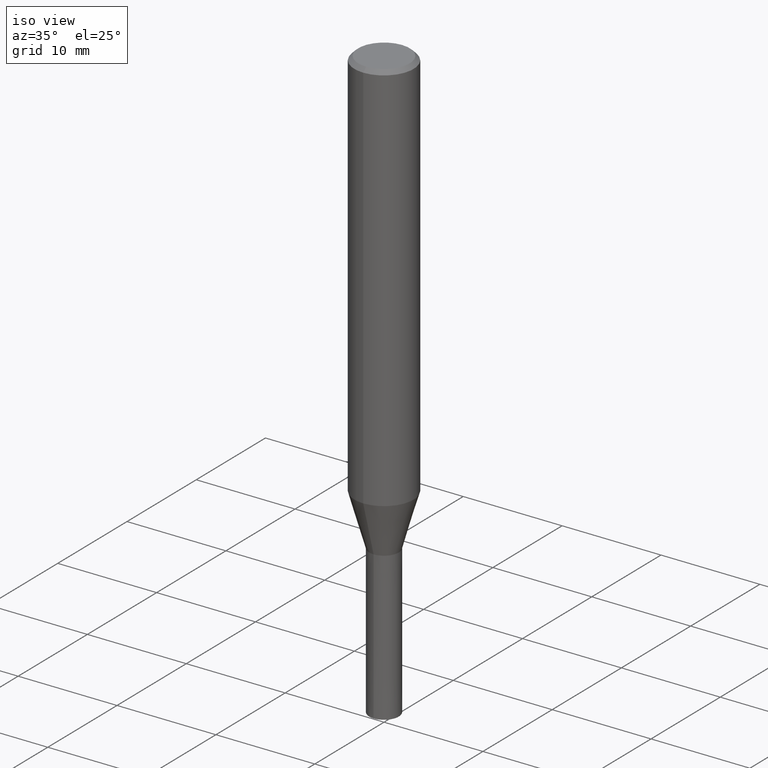
[diagram: clean part render]
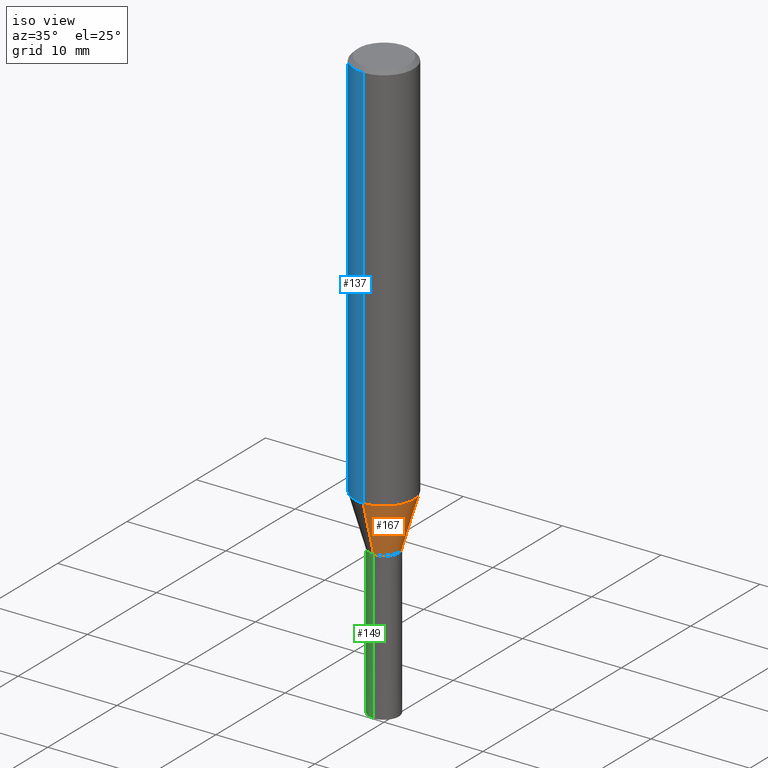
[diagram: same view with three faces highlighted in distinct colors, each labeled with its STEP entity id]
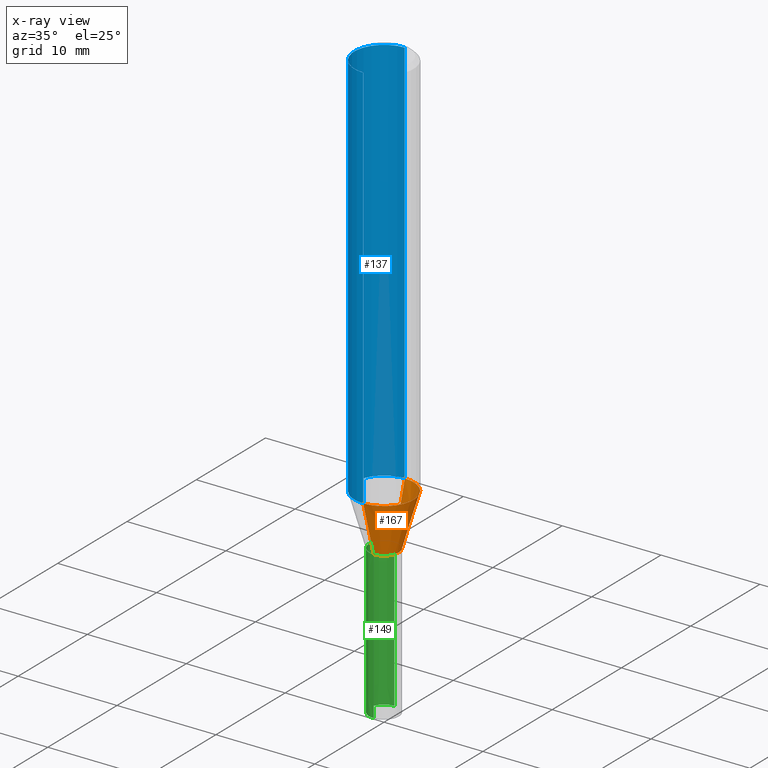
[diagram: x-ray of the same camera — body ghosted, the three highlighted faces saturated]
A machine part, iso view with three faces highlighted in distinct colors.
The next image is the same camera in x-ray (body ghosted, the three faces saturated) — at least one of them is partly hidden behind the body in this view.
Their STEP definitions:

[orange] entity #167 — the highlighted conical surface has half-angle 16 deg.
#121=EDGE_CURVE('',#155,#197,#292,.T.);
#125=VERTEX_POINT('',#296);
#155=VERTEX_POINT('',#332);
#167=ADVANCED_FACE('',(#344),#345,.T.);
#171=EDGE_CURVE('',#231,#197,#349,.T.);
#197=VERTEX_POINT('',#378);
#205=EDGE_CURVE('',#155,#125,#388,.T.);
#229=EDGE_CURVE('',#125,#231,#413,.T.);
#231=VERTEX_POINT('',#415);
#292=CIRCLE('',#483,2.99995);
#296=CARTESIAN_POINT('',(0.0,1.49995,-45.0));
#332=CARTESIAN_POINT('',(0.0,2.99995,-39.769));
#344=FACE_OUTER_BOUND('',#546,.T.);
#345=CONICAL_SURFACE('',#547,2.24995,0.279258842899557);
#349=LINE('',#554,#555);
#378=CARTESIAN_POINT('',(3.67375783114944E-016,-2.99995,-39.769));
#388=LINE('',#604,#605);
#413=CIRCLE('',#637,1.49995);
#415=CARTESIAN_POINT('',(1.83684830041587E-016,-1.49995,-45.0));
#483=AXIS2_PLACEMENT_3D('',#693,#694,#695);
#546=EDGE_LOOP('',(#758,#759,#760,#761));
#547=AXIS2_PLACEMENT_3D('',#762,#763,#764);
#554=CARTESIAN_POINT('',(2.75530306578266E-016,-2.24995,-42.3845));
#555=VECTOR('',#766,1.0);
#604=CARTESIAN_POINT('',(-2.75530306578266E-016,2.24995,-42.3845));
#605=VECTOR('',#821,1.0);
#637=AXIS2_PLACEMENT_3D('',#840,#841,#842);
#693=CARTESIAN_POINT('',(0.0,0.0,-39.769));
#694=DIRECTION('',(0.0,0.0,-1.0));
#695=DIRECTION('',(0.0,1.0,0.0));
#758=ORIENTED_EDGE('',*,*,#205,.F.);
#759=ORIENTED_EDGE('',*,*,#121,.T.);
#760=ORIENTED_EDGE('',*,*,#171,.F.);
#761=ORIENTED_EDGE('',*,*,#229,.F.);
#762=CARTESIAN_POINT('',(0.0,0.0,-42.3845));
#763=DIRECTION('',(-0.0,-0.0,1.0));
#764=DIRECTION('',(0.0,1.0,0.0));
#766=DIRECTION('',(3.37554511665356E-017,-0.275643279664313,0.961259997282682));
#821=DIRECTION('',(3.37554511665356E-017,-0.275643279664313,-0.961259997282682));
#840=CARTESIAN_POINT('',(0.0,0.0,-45.0));
#841=DIRECTION('',(0.0,0.0,-1.0));
#842=DIRECTION('',(0.0,1.0,0.0));

[blue] entity #137 — the highlighted cylindrical surface (edge-blend (fillet) strip) has radius 3 mm, axis along (-0, -0, 1).
#109=EDGE_CURVE('',#139,#247,#280,.T.);
#115=VERTEX_POINT('',#286);
#137=ADVANCED_FACE('',(#309),#310,.T.);
#139=VERTEX_POINT('',#312);
#173=EDGE_CURVE('',#251,#247,#351,.T.);
#179=EDGE_CURVE('',#115,#251,#357,.T.);
#245=EDGE_CURVE('',#139,#115,#433,.T.);
#247=VERTEX_POINT('',#435);
#251=VERTEX_POINT('',#441);
#280=CIRCLE('',#466,3.0);
#286=CARTESIAN_POINT('',(3.67381906146713E-016,-3.0,-0.399999999999999));
#309=FACE_OUTER_BOUND('',#504,.T.);
#310=CYLINDRICAL_SURFACE('',#505,3.0);
#312=CARTESIAN_POINT('',(3.67381906146713E-016,-3.0,-39.769));
#351=LINE('',#558,#559);
#357=CIRCLE('',#568,3.0);
#433=LINE('',#659,#660);
#435=CARTESIAN_POINT('',(0.0,3.0,-39.769));
#441=CARTESIAN_POINT('',(0.0,3.0,-0.399999999999999));
#466=AXIS2_PLACEMENT_3D('',#683,#684,#685);
#504=EDGE_LOOP('',(#707,#708,#709,#710));
#505=AXIS2_PLACEMENT_3D('',#711,#712,#713);
#558=CARTESIAN_POINT('',(-3.67381906146713E-016,3.0,-20.0845));
#559=VECTOR('',#767,1.0);
#568=AXIS2_PLACEMENT_3D('',#774,#775,#776);
#659=CARTESIAN_POINT('',(3.67381906146713E-016,-3.0,-20.0845));
#660=VECTOR('',#874,1.0);
#683=CARTESIAN_POINT('',(0.0,0.0,-39.769));
#684=DIRECTION('',(0.0,0.0,-1.0));
#685=DIRECTION('',(0.0,1.0,0.0));
#707=ORIENTED_EDGE('',*,*,#173,.T.);
#708=ORIENTED_EDGE('',*,*,#109,.F.);
#709=ORIENTED_EDGE('',*,*,#245,.T.);
#710=ORIENTED_EDGE('',*,*,#179,.T.);
#711=CARTESIAN_POINT('',(0.0,0.0,-20.0845));
#712=DIRECTION('',(-0.0,-0.0,1.0));
#713=DIRECTION('',(0.0,1.0,0.0));
#767=DIRECTION('',(0.0,0.0,-1.0));
#774=CARTESIAN_POINT('',(0.0,0.0,-0.399999999999999));
#775=DIRECTION('',(0.0,0.0,-1.0));
#776=DIRECTION('',(0.0,1.0,0.0));
#874=DIRECTION('',(-0.0,-0.0,1.0));

[green] entity #149 — the highlighted conical surface has half-angle 0 deg.
#127=VERTEX_POINT('',#298);
#129=EDGE_CURVE('',#225,#127,#300,.T.);
#149=ADVANCED_FACE('',(#324),#325,.T.);
#169=EDGE_CURVE('',#187,#185,#347,.T.);
#185=VERTEX_POINT('',#363);
#187=VERTEX_POINT('',#365);
#189=EDGE_CURVE('',#187,#127,#367,.T.);
#209=EDGE_CURVE('',#185,#225,#393,.T.);
#225=VERTEX_POINT('',#409);
#298=CARTESIAN_POINT('',(0.0,1.5,-60.0));
#300=LINE('',#492,#493);
#324=FACE_OUTER_BOUND('',#522,.T.);
#325=CONICAL_SURFACE('',#523,1.49995,6.66666666656717E-006);
#347=LINE('',#550,#551);
#363=CARTESIAN_POINT('',(1.83678707009818E-016,-1.4999,-45.0));
#365=CARTESIAN_POINT('',(1.83690953073357E-016,-1.5,-60.0));
#367=CIRCLE('',#580,1.5);
#393=CIRCLE('',#611,1.4999);
#409=CARTESIAN_POINT('',(0.0,1.4999,-45.0));
#492=CARTESIAN_POINT('',(-1.83684830041587E-016,1.49995,-52.5));
#493=VECTOR('',#696,1.0);
#522=EDGE_LOOP('',(#735,#736,#737,#738));
#523=AXIS2_PLACEMENT_3D('',#739,#740,#741);
#550=CARTESIAN_POINT('',(1.83684830041587E-016,-1.49995,-52.5));
#551=VECTOR('',#765,1.0);
#580=AXIS2_PLACEMENT_3D('',#780,#781,#782);
#611=AXIS2_PLACEMENT_3D('',#828,#829,#830);
#696=DIRECTION('',(-8.16404235863353E-022,6.66666666651778E-006,-0.999999999977778));
#735=ORIENTED_EDGE('',*,*,#129,.T.);
#736=ORIENTED_EDGE('',*,*,#189,.F.);
#737=ORIENTED_EDGE('',*,*,#169,.T.);
#738=ORIENTED_EDGE('',*,*,#209,.T.);
#739=CARTESIAN_POINT('',(0.0,0.0,-52.5));
#740=DIRECTION('',(0.0,-0.0,-1.0));
#741=DIRECTION('',(0.0,1.0,0.0));
#765=DIRECTION('',(-8.16404235863353E-022,6.66666666651778E-006,0.999999999977778));
#780=CARTESIAN_POINT('',(0.0,0.0,-60.0));
#781=DIRECTION('',(0.0,0.0,-1.0));
#782=DIRECTION('',(0.0,1.0,0.0));
#828=CARTESIAN_POINT('',(0.0,0.0,-45.0));
#829=DIRECTION('',(0.0,0.0,-1.0));
#830=DIRECTION('',(0.0,1.0,0.0));